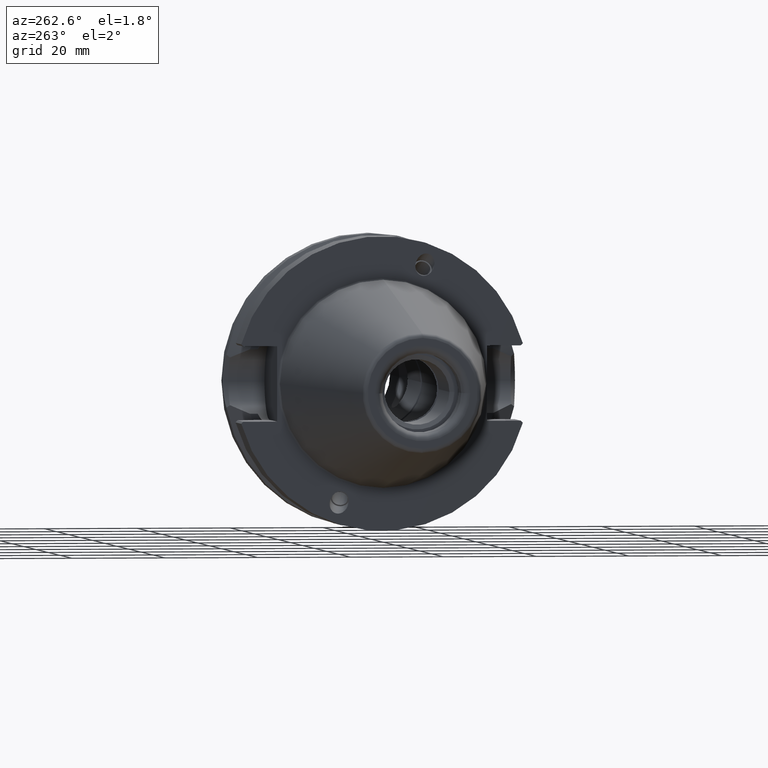
[diagram: clean part render]
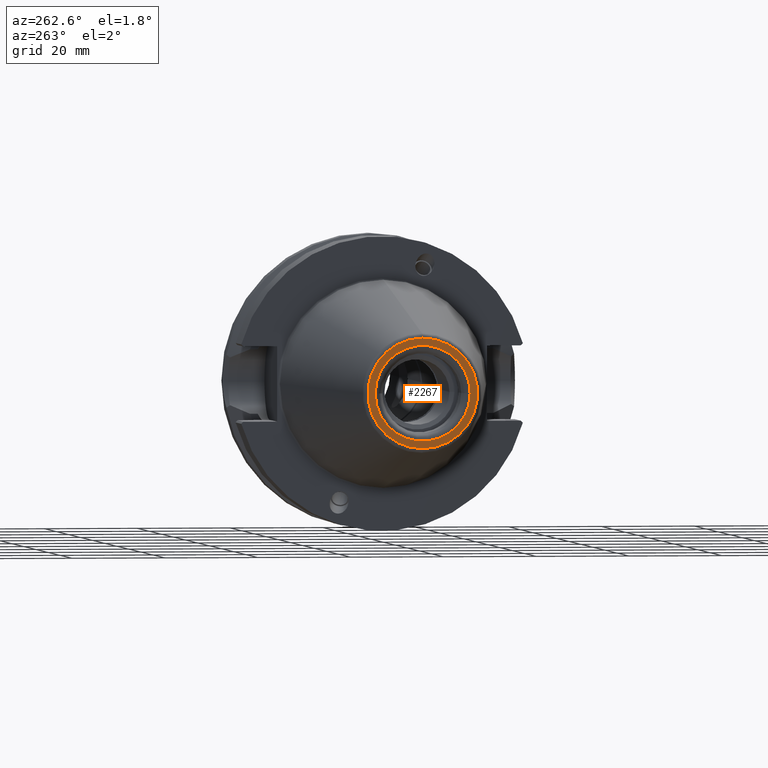
[diagram: same view with one face highlighted and labeled with its STEP entity id]
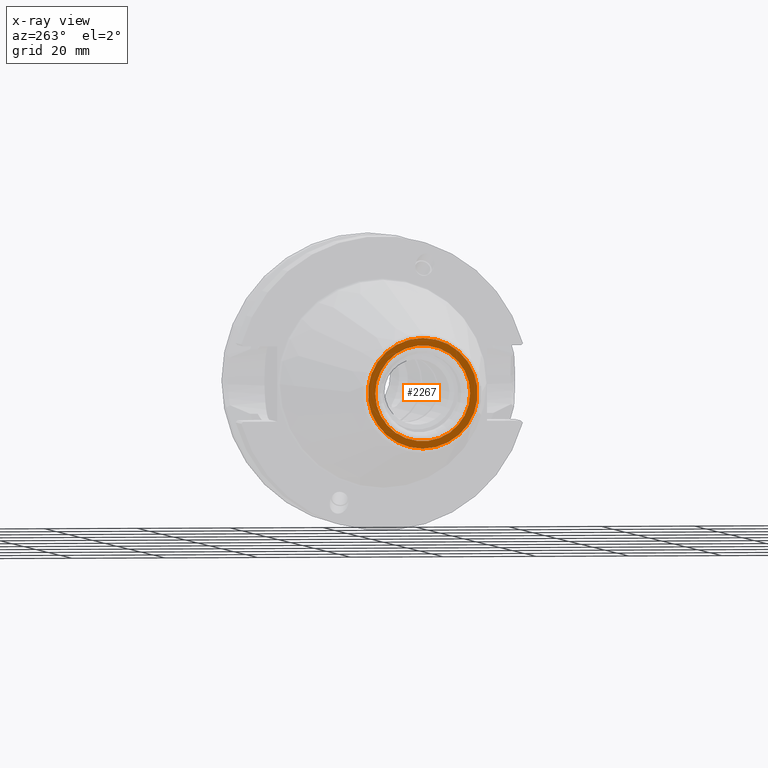
[diagram: x-ray of the same camera — body ghosted, the highlighted face saturated]
A machine part, auxiliary view. The second image highlights one B-rep face of the part: STEP entity #2267.
The next image is the same camera in x-ray: the body ghosted, the highlighted face saturated — about 0% of this face is hidden behind the body in this view.
In plain terms, the highlighted planar face has unit normal (1, 0, 0).
Its self-contained STEP definition (entity closure, byte-faithful):
#43=CARTESIAN_POINT('',(-6.54E1,0.E0,0.E0));
#44=DIRECTION('',(1.E0,0.E0,0.E0));
#45=DIRECTION('',(0.E0,-1.E0,6.962880139683E-8));
#46=AXIS2_PLACEMENT_3D('',#43,#44,#45);
#48=CARTESIAN_POINT('',(-6.54E1,0.E0,0.E0));
#49=DIRECTION('',(1.E0,0.E0,0.E0));
#50=DIRECTION('',(0.E0,1.E0,-6.962880216254E-8));
#51=AXIS2_PLACEMENT_3D('',#48,#49,#50);
#53=CARTESIAN_POINT('',(-6.54E1,0.E0,0.E0));
#54=DIRECTION('',(-1.E0,0.E0,0.E0));
#55=DIRECTION('',(0.E0,0.E0,1.E0));
#56=AXIS2_PLACEMENT_3D('',#53,#54,#55);
#58=CARTESIAN_POINT('',(-6.54E1,0.E0,0.E0));
#59=DIRECTION('',(-1.E0,0.E0,0.E0));
#60=DIRECTION('',(0.E0,0.E0,-1.E0));
#61=AXIS2_PLACEMENT_3D('',#58,#59,#60);
#1909=CARTESIAN_POINT('',(-6.54E1,-1.023205080757E1,7.124454427166E-7));
#1910=CARTESIAN_POINT('',(-6.54E1,1.023205080757E1,-7.124454392933E-7));
#1911=VERTEX_POINT('',#1909);
#1912=VERTEX_POINT('',#1910);
#1917=CARTESIAN_POINT('',(-6.54E1,0.E0,1.182275625261E1));
#1918=CARTESIAN_POINT('',(-6.54E1,0.E0,-1.182275625261E1));
#1919=VERTEX_POINT('',#1917);
#1920=VERTEX_POINT('',#1918);
#2251=CARTESIAN_POINT('',(-6.54E1,0.E0,0.E0));
#2252=DIRECTION('',(1.E0,0.E0,0.E0));
#2253=DIRECTION('',(0.E0,0.E0,1.E0));
#2254=AXIS2_PLACEMENT_3D('',#2251,#2252,#2253);
#2255=PLANE('',#2254);
#2257=ORIENTED_EDGE('',*,*,#2256,.F.);
#2258=ORIENTED_EDGE('',*,*,#2241,.F.);
#2259=EDGE_LOOP('',(#2257,#2258));
#2260=FACE_OUTER_BOUND('',#2259,.F.);
#2262=ORIENTED_EDGE('',*,*,#2261,.F.);
#2264=ORIENTED_EDGE('',*,*,#2263,.F.);
#2265=EDGE_LOOP('',(#2262,#2264));
#2266=FACE_BOUND('',#2265,.F.);
#2267=ADVANCED_FACE('',(#2260,#2266),#2255,.F.);
#47=CIRCLE('',#46,1.023205080757E1);
#52=CIRCLE('',#51,1.023205080757E1);
#57=CIRCLE('',#56,1.182275625261E1);
#62=CIRCLE('',#61,1.182275625261E1);
#2241=EDGE_CURVE('',#1920,#1919,#62,.T.);
#2256=EDGE_CURVE('',#1919,#1920,#57,.T.);
#2261=EDGE_CURVE('',#1911,#1912,#47,.T.);
#2263=EDGE_CURVE('',#1912,#1911,#52,.T.);